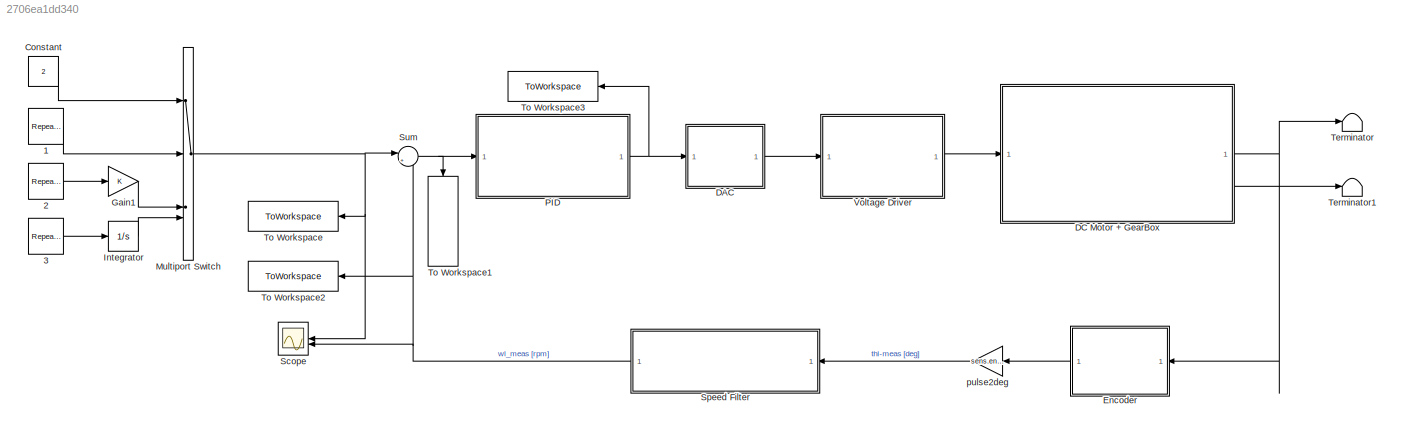
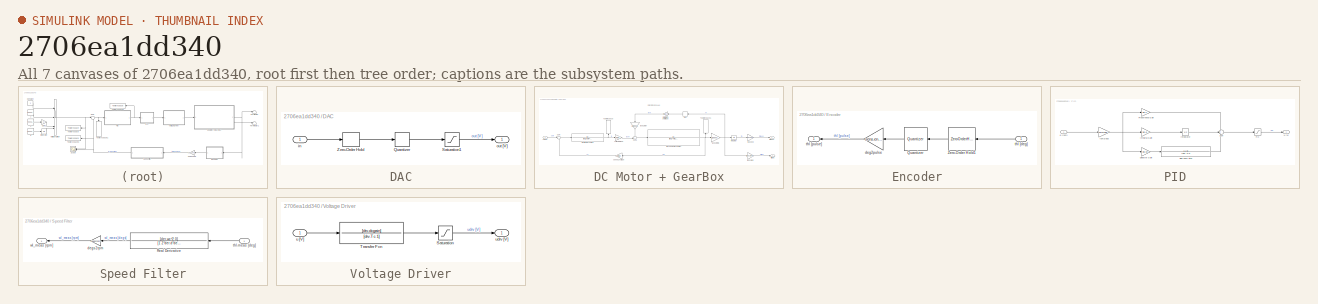
[diagram: thumbnail index - all 7 canvases of the model, root first then tree order]
MODEL slx_2706ea1dd340
KIND model
CONFIG AbsTol = auto
CONFIG EnableMultiTasking = off
CONFIG FixedStep = auto
CONFIG MaxStep = auto
CONFIG MinStep = auto
CONFIG RelTol = 1e-3
CONFIG SampleTimeConstraint = Unconstrained
CONFIG SolverName = VariableStepAuto
CONFIG StartTime = 0.0
CONFIG StopTime = 45
BLOCK [Reference] 1  REF=simulink/Sources/Repeating
Sequence
Stair
  SourceBlock = simulink/Sources/Repeating\nSequence\nStair
  SourceType = Repeating Sequence Stair
BLOCK [Reference] 2  REF=simulink/Sources/Repeating
Sequence
Stair
  SourceBlock = simulink/Sources/Repeating\nSequence\nStair
  SourceType = Repeating Sequence Stair
BLOCK [Reference] 3  REF=simulink/Sources/Repeating
Sequence
Stair
  SourceBlock = simulink/Sources/Repeating\nSequence\nStair
  SourceType = Repeating Sequence Stair
BLOCK [Constant] Constant
  Value = 2
BLOCK [SubSystem] DAC
BLOCK [Quantizer] DAC/Quantizer
  QuantizationInterval = daq.dac.q
BLOCK [Saturate] DAC/Saturation1
  LowerLimit = -10
  UpperLimit = 10
BLOCK [ZeroOrderHold] DAC/Zero-Order Hold
  SampleTime = Ts
BLOCK [Inport] DAC/in
BLOCK [Outport] DAC/out [V]
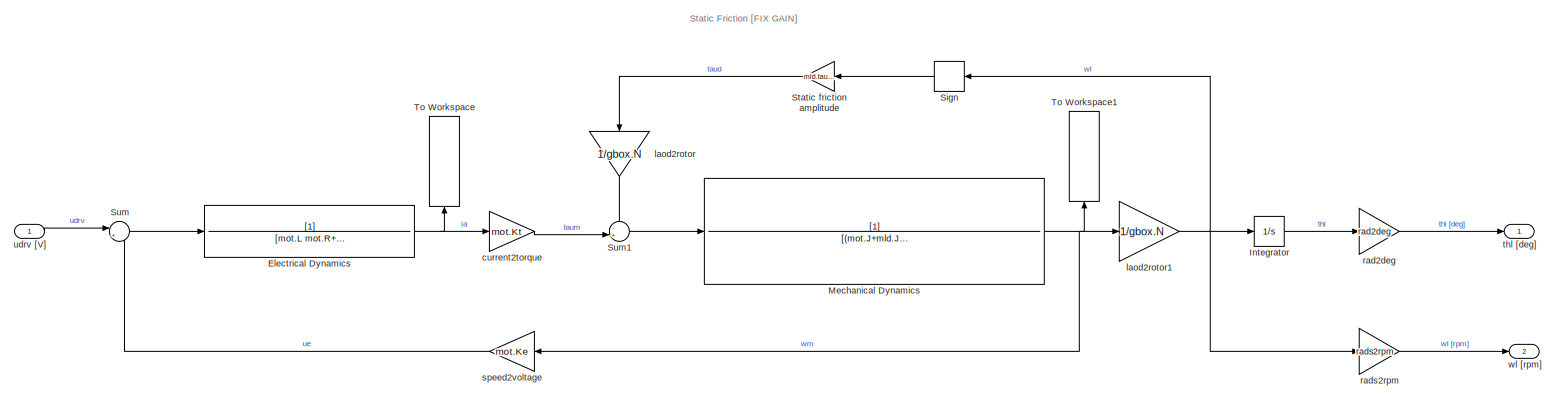
[diagram: DC Motor + GearBox - part 1/1, most of the canvas]
BLOCK [SubSystem] DC Motor + GearBox
BLOCK [TransferFcn] DC Motor + GearBox/Electrical Dynamics
  Denominator = [mot.L mot.R+sens.curr.Rs]
BLOCK [Integrator] DC Motor + GearBox/Integrator
BLOCK [TransferFcn] DC Motor + GearBox/Mechanical Dynamics
  Denominator = [(mot.J+mld.J/gbox.N^2) (mot.B+mld.B/gbox.N^2)]
BLOCK [Signum] DC Motor + GearBox/Sign
  NameLocation = top
  ZeroCross = off
BLOCK [Gain] DC Motor + GearBox/Static friction amplitude
  Gain = mld.tausf
  NameLocation = top
BLOCK [Sum] DC Motor + GearBox/Sum
  Inputs = |+-
BLOCK [Sum] DC Motor + GearBox/Sum1
  Inputs = -+|
BLOCK [ToWorkspace] DC Motor + GearBox/To Workspace
  FixptAsFi = on
  MaxDataPoints = inf
  NameLocation = right
  SampleTime = -1
  SaveFormat = Timeseries
  VariableName = ia
BLOCK [ToWorkspace] DC Motor + GearBox/To Workspace1
  FixptAsFi = on
  MaxDataPoints = inf
  NameLocation = right
  SampleTime = -1
  SaveFormat = Timeseries
  VariableName = wm
BLOCK [Gain] DC Motor + GearBox/current2torque
  Gain = mot.Kt
BLOCK [Gain] DC Motor + GearBox/laod2rotor
  Gain = 1/gbox.N
  NameLocation = left
BLOCK [Gain] DC Motor + GearBox/laod2rotor1
  Gain = 1/gbox.N
BLOCK [Gain] DC Motor + GearBox/rad2deg
  Gain = rad2deg
BLOCK [Gain] DC Motor + GearBox/rads2rpm
  Gain = rads2rpm
BLOCK [Gain] DC Motor + GearBox/speed2voltage
  Gain = mot.Ke
  NameLocation = top
BLOCK [Outport] DC Motor + GearBox/thl [deg]
BLOCK [Inport] DC Motor + GearBox/udrv [V]
BLOCK [Outport] DC Motor + GearBox/wl [rpm]
  Port = 2
BLOCK [SubSystem] Encoder
  NameLocation = top
BLOCK [Quantizer] Encoder/Quantizer
  NameLocation = top
  QuantizationInterval = sens.enc.pulse2deg
BLOCK [ZeroOrderHold] Encoder/Zero-Order Hold1
  NameLocation = top
  SampleTime = Ts
BLOCK [Gain] Encoder/deg2pulse
  Gain = sens.enc.deg2pulse
BLOCK [Inport] Encoder/thl [deg]
BLOCK [Outport] Encoder/thl [pulse]
BLOCK [Gain] Gain1
BLOCK [Integrator] Integrator
BLOCK [MultiPortSwitch] Multiport Switch
  InputSameDT = off
  SaturateOnIntegerOverflow = off
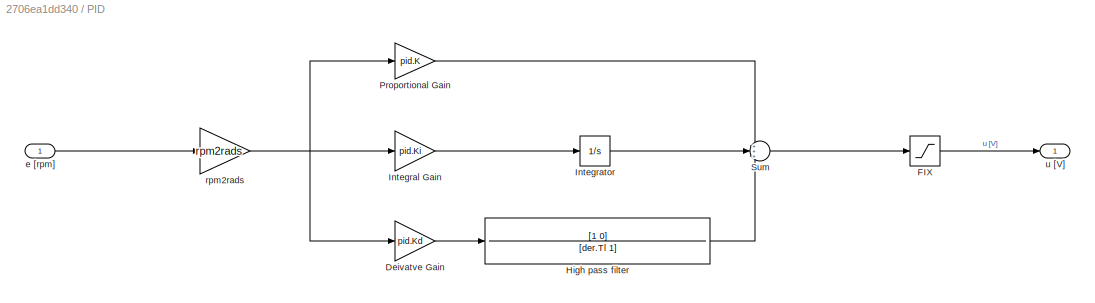
BLOCK [SubSystem] PID
BLOCK [Gain] PID/Deivatve Gain
  Gain = pid.Kd
BLOCK [Saturate] PID/FIX 
  LowerLimit = -10
  UpperLimit = 10
BLOCK [TransferFcn] PID/High pass filter
  Denominator = [der.Tl 1]
  Numerator = [1 0]
BLOCK [Gain] PID/Integral Gain
  Gain = pid.Ki
BLOCK [Integrator] PID/Integrator
BLOCK [Gain] PID/Proportional Gain
  Gain = pid.K
BLOCK [Sum] PID/Sum
  Inputs = +++
BLOCK [Inport] PID/e [rpm]
BLOCK [Gain] PID/rpm2rads
  Gain = rpm2rads
BLOCK [Outport] PID/u [V]
BLOCK [Scope] Scope
  Floating = off
  NameLocation = top
  NumInputPorts = 2
  ScopeSpecificationString = Simulink.scopes.TimeScopeBlockCfg('CurrentConfiguration', extmgr.ConfigurationSet(extmgr.Configuration('Core','General UI',true,'FigureColor',[1 1 1]),extmgr.Configuration('Core','Source UI',true),extmgr.Configuration('Sources','WiredSimulink',true),extmgr.Configuration('Visuals','Time Domain',true,'SerializedDisplays',{struct('MinYLimReal','398.51156','MaxYLimReal','405.68695','YLabelReal','','Mi...<+1549ch>
BLOCK [SubSystem] Speed Filter
  NameLocation = top
BLOCK [TransferFcn] Speed Filter/Real Derivative
  Denominator = [1 2*der.d*der.wc der.wc^2]
  NameLocation = top
  Numerator = [der.wc^2 0]
BLOCK [Gain] Speed Filter/degs2rpm
  Gain = degs2rpm
  NameLocation = top
BLOCK [Inport] Speed Filter/thl-meas [deg]
BLOCK [Outport] Speed Filter/wl_meas [rpm]
  NameLocation = top
BLOCK [Sum] Sum
  Inputs = |+-
BLOCK [Terminator] Terminator
BLOCK [Terminator] Terminator1
BLOCK [ToWorkspace] To Workspace
  FixptAsFi = on
  MaxDataPoints = inf
  NameLocation = top
  SampleTime = -1
  SaveFormat = Timeseries
  VariableName = wref
BLOCK [ToWorkspace] To Workspace1
  FixptAsFi = on
  MaxDataPoints = inf
  NameLocation = left
  SampleTime = -1
  SaveFormat = Timeseries
  VariableName = e
BLOCK [ToWorkspace] To Workspace2
  FixptAsFi = on
  MaxDataPoints = inf
  NameLocation = top
  SampleTime = -1
  SaveFormat = Timeseries
  VariableName = wmeas
BLOCK [ToWorkspace] To Workspace3
  FixptAsFi = on
  MaxDataPoints = inf
  NameLocation = top
  SampleTime = -1
  SaveFormat = Timeseries
  VariableName = u
BLOCK [SubSystem] Voltage Driver
BLOCK [Saturate] Voltage Driver/Saturation
  LowerLimit = -12
  UpperLimit = 12
BLOCK [TransferFcn] Voltage Driver/Transfer Fcn
  Denominator = [drv.Tc 1]
  Numerator = [drv.dcgain]
BLOCK [Inport] Voltage Driver/u [V]
BLOCK [Outport] Voltage Driver/udrv [V]
BLOCK [Gain] pulse2deg
  Gain = sens.enc.pulse2deg
ANNOTATION DC Motor + GearBox: Static Friction [FIX GAIN]
LINE 1:1 -> Multiport Switch:2
LINE 2:1 -> Gain1:1
LINE 3:1 -> Integrator:1
LINE Constant:1 -> Multiport Switch:1
LINE DAC/Quantizer:1 -> DAC/Saturation1:1
LINE DAC/Saturation1:1 -> DAC/out [V]:1
LINE DAC/Zero-Order Hold:1 -> DAC/Quantizer:1
LINE DAC/in:1 -> DAC/Zero-Order Hold:1
LINE DAC:1 -> Voltage Driver:1
NET DC Motor + GearBox/Electrical Dynamics:1 -> DC Motor + GearBox/To Workspace:1, DC Motor + GearBox/current2torque:1
LINE DC Motor + GearBox/Integrator:1 -> DC Motor + GearBox/rad2deg:1
NET DC Motor + GearBox/Mechanical Dynamics:1 -> DC Motor + GearBox/To Workspace1:1, DC Motor + GearBox/laod2rotor1:1, DC Motor + GearBox/speed2voltage:1
LINE DC Motor + GearBox/Sign:1 -> DC Motor + GearBox/Static friction amplitude:1
LINE DC Motor + GearBox/Static friction amplitude:1 -> DC Motor + GearBox/laod2rotor:1
LINE DC Motor + GearBox/Sum1:1 -> DC Motor + GearBox/Mechanical Dynamics:1
LINE DC Motor + GearBox/Sum:1 -> DC Motor + GearBox/Electrical Dynamics:1
LINE DC Motor + GearBox/current2torque:1 -> DC Motor + GearBox/Sum1:2
NET DC Motor + GearBox/laod2rotor1:1 -> DC Motor + GearBox/Integrator:1, DC Motor + GearBox/Sign:1, DC Motor + GearBox/rads2rpm:1
LINE DC Motor + GearBox/laod2rotor:1 -> DC Motor + GearBox/Sum1:1
LINE DC Motor + GearBox/rad2deg:1 -> DC Motor + GearBox/thl [deg]:1
LINE DC Motor + GearBox/rads2rpm:1 -> DC Motor + GearBox/wl [rpm]:1
LINE DC Motor + GearBox/speed2voltage:1 -> DC Motor + GearBox/Sum:2
LINE DC Motor + GearBox/udrv [V]:1 -> DC Motor + GearBox/Sum:1
NET DC Motor + GearBox:1 -> Encoder:1, Terminator:1
LINE DC Motor + GearBox:2 -> Terminator1:1
LINE Encoder/Quantizer:1 -> Encoder/deg2pulse:1
LINE Encoder/Zero-Order Hold1:1 -> Encoder/Quantizer:1
LINE Encoder/deg2pulse:1 -> Encoder/thl [pulse]:1
LINE Encoder/thl [deg]:1 -> Encoder/Zero-Order Hold1:1
LINE Encoder:1 -> pulse2deg:1
LINE Gain1:1 -> Multiport Switch:3
LINE Integrator:1 -> Multiport Switch:4
NET Multiport Switch:1 -> Scope:1, Sum:1, To Workspace:1
LINE PID/Deivatve Gain:1 -> PID/High pass filter:1
LINE PID/FIX :1 -> PID/u [V]:1
LINE PID/High pass filter:1 -> PID/Sum:3
LINE PID/Integral Gain:1 -> PID/Integrator:1
LINE PID/Integrator:1 -> PID/Sum:2
LINE PID/Proportional Gain:1 -> PID/Sum:1
LINE PID/Sum:1 -> PID/FIX :1
LINE PID/e [rpm]:1 -> PID/rpm2rads:1
NET PID/rpm2rads:1 -> PID/Deivatve Gain:1, PID/Integral Gain:1, PID/Proportional Gain:1
NET PID:1 -> DAC:1, To Workspace3:1
LINE Speed Filter/Real Derivative:1 -> Speed Filter/degs2rpm:1
LINE Speed Filter/degs2rpm:1 -> Speed Filter/wl_meas [rpm]:1
LINE Speed Filter/thl-meas [deg]:1 -> Speed Filter/Real Derivative:1
NET Speed Filter:1 -> Scope:2, Sum:2, To Workspace2:1
NET Sum:1 -> PID:1, To Workspace1:1
LINE Voltage Driver/Saturation:1 -> Voltage Driver/udrv [V]:1
LINE Voltage Driver/Transfer Fcn:1 -> Voltage Driver/Saturation:1
LINE Voltage Driver/u [V]:1 -> Voltage Driver/Transfer Fcn:1
LINE Voltage Driver:1 -> DC Motor + GearBox:1
LINE pulse2deg:1 -> Speed Filter:1
note: NET lines group one-source signal fan-out (src -> all destinations, sorted); 1:1 wires keep LINE
